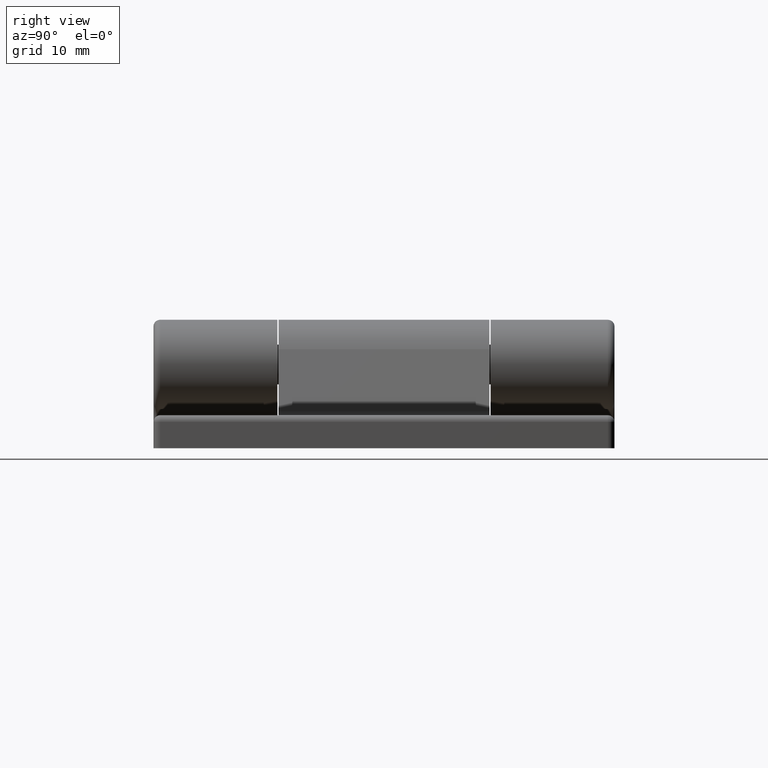
[diagram: clean part render]
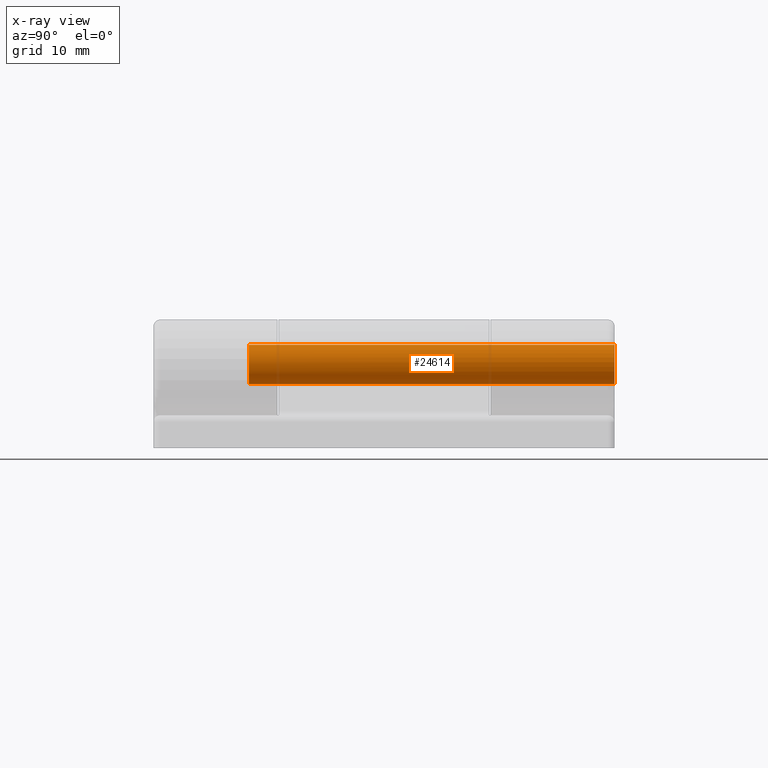
[diagram: x-ray — body ghosted, one internal face saturated and labeled with its STEP entity id]
A machine part, right view, then the same camera in x-ray: the body is ghosted and one INTERNAL B-rep face — a face not visible from any outside direction — is saturated and labeled: STEP entity #24614.
In plain terms, the highlighted cylindrical surface (bore or boss wall) has radius 3 mm, axis along (-0, -1, -0).
Its self-contained STEP definition (entity closure, byte-faithful):
#125 = CIRCLE ( 'NONE', #10555, 2.999999999999999556 ) ;
#129 = DIRECTION ( 'NONE',  ( 0.000000000000000000, -1.000000000000000000, 0.000000000000000000 ) ) ;
#154 = CIRCLE ( 'NONE', #24136, 2.999999999999999556 ) ;
#174 = DIRECTION ( 'NONE',  ( 0.000000000000000000, 0.000000000000000000, -1.000000000000000000 ) ) ;
#201 = ORIENTED_EDGE ( 'NONE', *, *, #29370, .F. ) ;
#219 = DIRECTION ( 'NONE',  ( 0.000000000000000000, 0.000000000000000000, -1.000000000000000000 ) ) ;
#243 = DIRECTION ( 'NONE',  ( 0.000000000000000000, -1.000000000000000000, 0.000000000000000000 ) ) ;
#270 = ORIENTED_EDGE ( 'NONE', *, *, #28159, .F. ) ;
#280 = VERTEX_POINT ( 'NONE', #16491 ) ;
#308 = DIRECTION ( 'NONE',  ( 0.000000000000000000, 0.000000000000000000, -1.000000000000000000 ) ) ;
#317 = VERTEX_POINT ( 'NONE', #14008 ) ;
#387 = CIRCLE ( 'NONE', #17621, 2.999999999999999556 ) ;
#399 = DIRECTION ( 'NONE',  ( 0.000000000000000000, -1.000000000000000000, 0.000000000000000000 ) ) ;
#476 = EDGE_CURVE ( 'NONE', #10172, #18580, #12371, .T. ) ;
#494 = DIRECTION ( 'NONE',  ( 0.000000000000000000, 0.000000000000000000, -1.000000000000000000 ) ) ;
#617 = AXIS2_PLACEMENT_3D ( 'NONE', #4901, #7338, #14023 ) ;
#622 = VERTEX_POINT ( 'NONE', #6955 ) ;
#703 = CARTESIAN_POINT ( 'NONE',  ( 0.000000000000000000, -20.50000000000000355, 0.000000000000000000 ) ) ;
#712 = CARTESIAN_POINT ( 'NONE',  ( 0.000000000000000000, -20.50000000000000355, 0.000000000000000000 ) ) ;
#788 = EDGE_CURVE ( 'NONE', #25530, #11251, #21283, .T. ) ;
#805 = ORIENTED_EDGE ( 'NONE', *, *, #878, .F. ) ;
#822 = VERTEX_POINT ( 'NONE', #13480 ) ;
#878 = EDGE_CURVE ( 'NONE', #822, #24810, #154, .T. ) ;
#909 = DIRECTION ( 'NONE',  ( 0.000000000000000000, -1.000000000000000000, 0.000000000000000000 ) ) ;
#917 = DIRECTION ( 'NONE',  ( 0.000000000000000000, 0.000000000000000000, -1.000000000000000000 ) ) ;
#948 = AXIS2_PLACEMENT_3D ( 'NONE', #27174, #4292, #6437 ) ;
#1004 = CIRCLE ( 'NONE', #24688, 2.999999999999999556 ) ;
#1006 = CARTESIAN_POINT ( 'NONE',  ( 0.000000000000000000, -20.50000000000000355, 0.000000000000000000 ) ) ;
#1043 = CARTESIAN_POINT ( 'NONE',  ( 0.000000000000000000, -20.50000000000000355, 0.000000000000000000 ) ) ;
#1074 = AXIS2_PLACEMENT_3D ( 'NONE', #17402, #26686, #6347 ) ;
#1085 = VERTEX_POINT ( 'NONE', #7788 ) ;
#1104 = CARTESIAN_POINT ( 'NONE',  ( 0.000000000000000000, -20.50000000000000355, 0.000000000000000000 ) ) ;
#1198 = DIRECTION ( 'NONE',  ( 0.000000000000000000, -1.000000000000000000, 0.000000000000000000 ) ) ;
#1211 = DIRECTION ( 'NONE',  ( 0.000000000000000000, 0.000000000000000000, -1.000000000000000000 ) ) ;
#1256 = ORIENTED_EDGE ( 'NONE', *, *, #11762, .F. ) ;
#1377 = ORIENTED_EDGE ( 'NONE', *, *, #2582, .F. ) ;
#1393 = ORIENTED_EDGE ( 'NONE', *, *, #23893, .F. ) ;
#1421 = CARTESIAN_POINT ( 'NONE',  ( 0.000000000000000000, -20.50000000000000355, 0.000000000000000000 ) ) ;
#1425 = DIRECTION ( 'NONE',  ( 0.000000000000000000, -1.000000000000000000, 0.000000000000000000 ) ) ;
#1457 = EDGE_CURVE ( 'NONE', #22306, #22374, #28733, .T. ) ;
#1497 = EDGE_CURVE ( 'NONE', #16645, #13468, #23339, .T. ) ;
#1507 = DIRECTION ( 'NONE',  ( 0.000000000000000000, -1.000000000000000000, 0.000000000000000000 ) ) ;
#1520 = DIRECTION ( 'NONE',  ( 0.000000000000000000, 0.000000000000000000, -1.000000000000000000 ) ) ;
#1553 = ORIENTED_EDGE ( 'NONE', *, *, #17647, .F. ) ;
#1556 = ORIENTED_EDGE ( 'NONE', *, *, #25214, .F. ) ;
#1562 = CARTESIAN_POINT ( 'NONE',  ( -1.567495694147814200, -20.50000000000000355, 2.557920493062296519 ) ) ;
#1571 = EDGE_CURVE ( 'NONE', #24154, #3248, #26936, .T. ) ;
#1572 = DIRECTION ( 'NONE',  ( 0.000000000000000000, -1.000000000000000000, 0.000000000000000000 ) ) ;
#1574 = DIRECTION ( 'NONE',  ( 0.000000000000000000, -1.000000000000000000, 0.000000000000000000 ) ) ;
#1620 = CARTESIAN_POINT ( 'NONE',  ( 0.000000000000000000, -20.50000000000000355, 0.000000000000000000 ) ) ;
#1707 = VERTEX_POINT ( 'NONE', #24244 ) ;
#1717 = ORIENTED_EDGE ( 'NONE', *, *, #1457, .F. ) ;
#1863 = CIRCLE ( 'NONE', #4300, 2.999999999999999556 ) ;
#1871 = CARTESIAN_POINT ( 'NONE',  ( 0.000000000000000000, -20.50000000000000355, 0.000000000000000000 ) ) ;
#1878 = AXIS2_PLACEMENT_3D ( 'NONE', #28706, #7977, #1211 ) ;
#1891 = AXIS2_PLACEMENT_3D ( 'NONE', #5761, #28813, #10365 ) ;
#1915 = DIRECTION ( 'NONE',  ( 0.000000000000000000, 0.000000000000000000, -1.000000000000000000 ) ) ;
#1927 = AXIS2_PLACEMENT_3D ( 'NONE', #29552, #6429, #15600 ) ;
#1993 = CARTESIAN_POINT ( 'NONE',  ( 0.4693033951206732057, -20.50000000000000355, -2.963065021785416420 ) ) ;
#2046 = EDGE_CURVE ( 'NONE', #24005, #13152, #11833, .T. ) ;
#2048 = DIRECTION ( 'NONE',  ( 0.000000000000000000, -1.000000000000000000, 0.000000000000000000 ) ) ;
#2069 = CIRCLE ( 'NONE', #617, 2.999999999999999556 ) ;
#2095 = AXIS2_PLACEMENT_3D ( 'NONE', #12037, #7251, #28004 ) ;
#2138 = DIRECTION ( 'NONE',  ( 0.000000000000000000, 0.000000000000000000, -1.000000000000000000 ) ) ;
#2331 = ORIENTED_EDGE ( 'NONE', *, *, #3957, .F. ) ;
#2401 = CIRCLE ( 'NONE', #3687, 2.999999999999999556 ) ;
#2436 = CARTESIAN_POINT ( 'NONE',  ( 0.000000000000000000, -20.50000000000000355, 0.000000000000000000 ) ) ;
#2473 = EDGE_CURVE ( 'NONE', #21833, #21212, #5938, .T. ) ;
#2516 = CIRCLE ( 'NONE', #26269, 2.999999999999999556 ) ;
#2555 = DIRECTION ( 'NONE',  ( 0.000000000000000000, -1.000000000000000000, 0.000000000000000000 ) ) ;
#2565 = CARTESIAN_POINT ( 'NONE',  ( 0.000000000000000000, -20.50000000000000355, -3.000000000000000000 ) ) ;
#2582 = EDGE_CURVE ( 'NONE', #12116, #11565, #23376, .T. ) ;
#2605 = DIRECTION ( 'NONE',  ( 0.000000000000000000, 0.000000000000000000, -1.000000000000000000 ) ) ;
#2620 = CIRCLE ( 'NONE', #11956, 2.999999999999999556 ) ;
#2630 = CIRCLE ( 'NONE', #22335, 2.999999999999999556 ) ;
#2801 = EDGE_CURVE ( 'NONE', #25244, #24154, #2620, .T. ) ;
#2815 = CARTESIAN_POINT ( 'NONE',  ( 0.000000000000000000, -20.50000000000000355, 0.000000000000000000 ) ) ;
#2821 = AXIS2_PLACEMENT_3D ( 'NONE', #12709, #15216, #19756 ) ;
#2845 = DIRECTION ( 'NONE',  ( 0.000000000000000000, -1.000000000000000000, 0.000000000000000000 ) ) ;
#2881 = EDGE_CURVE ( 'NONE', #15532, #11826, #13763, .T. ) ;
#2949 = AXIS2_PLACEMENT_3D ( 'NONE', #23690, #17011, #917 ) ;
#2998 = DIRECTION ( 'NONE',  ( 0.000000000000000000, 0.000000000000000000, -1.000000000000000000 ) ) ;
#3021 = AXIS2_PLACEMENT_3D ( 'NONE', #2815, #21084, #308 ) ;
#3073 = CIRCLE ( 'NONE', #24640, 2.999999999999999556 ) ;
#3101 = ORIENTED_EDGE ( 'NONE', *, *, #24093, .F. ) ;
#3116 = AXIS2_PLACEMENT_3D ( 'NONE', #15536, #15244, #1520 ) ;
#3136 = VERTEX_POINT ( 'NONE', #4638 ) ;
#3156 = CIRCLE ( 'NONE', #23566, 2.999999999999999556 ) ;
#3248 = VERTEX_POINT ( 'NONE', #3629 ) ;
#3275 = DIRECTION ( 'NONE',  ( 0.000000000000000000, -1.000000000000000000, 0.000000000000000000 ) ) ;
#3306 = ORIENTED_EDGE ( 'NONE', *, *, #5730, .F. ) ;
#3310 = ORIENTED_EDGE ( 'NONE', *, *, #14317, .F. ) ;
#3406 = CARTESIAN_POINT ( 'NONE',  ( 0.000000000000000000, -20.50000000000000355, 0.000000000000000000 ) ) ;
#3411 = ORIENTED_EDGE ( 'NONE', *, *, #13084, .F. ) ;
#3540 = ORIENTED_EDGE ( 'NONE', *, *, #6449, .F. ) ;
#3605 = EDGE_CURVE ( 'NONE', #9945, #6413, #24049, .T. ) ;
#3613 = CARTESIAN_POINT ( 'NONE',  ( 0.7003360915677179221, -20.50000000000000355, 2.917109761193029449 ) ) ;
#3629 = CARTESIAN_POINT ( 'NONE',  ( 0.7003360915676970500, -20.50000000000000355, -2.917109761193034778 ) ) ;
#3632 = CARTESIAN_POINT ( 'NONE',  ( 0.000000000000000000, -20.50000000000000355, 0.000000000000000000 ) ) ;
#3669 = VERTEX_POINT ( 'NONE', #10143 ) ;
#3687 = AXIS2_PLACEMENT_3D ( 'NONE', #8953, #18209, #25095 ) ;
#3715 = CARTESIAN_POINT ( 'NONE',  ( 2.917109761193032114, -20.50000000000000355, 0.7003360915677073750 ) ) ;
#3756 = CIRCLE ( 'NONE', #18033, 2.999999999999999556 ) ;
#3766 = DIRECTION ( 'NONE',  ( 0.000000000000000000, 0.000000000000000000, -1.000000000000000000 ) ) ;
#3801 = CIRCLE ( 'NONE', #4882, 2.999999999999999556 ) ;
#3867 = AXIS2_PLACEMENT_3D ( 'NONE', #24076, #24171, #10531 ) ;
#3894 = CARTESIAN_POINT ( 'NONE',  ( 0.000000000000000000, -20.50000000000000355, 0.000000000000000000 ) ) ;
#3957 = EDGE_CURVE ( 'NONE', #13152, #21833, #9436, .T. ) ;
#4044 = CIRCLE ( 'NONE', #5925, 2.999999999999999556 ) ;
#4046 = ORIENTED_EDGE ( 'NONE', *, *, #9556, .F. ) ;
#4059 = ORIENTED_EDGE ( 'NONE', *, *, #17085, .F. ) ;
#4108 = EDGE_CURVE ( 'NONE', #6438, #4365, #19009, .T. ) ;
#4183 = ORIENTED_EDGE ( 'NONE', *, *, #476, .F. ) ;
#4241 = EDGE_CURVE ( 'NONE', #14443, #22667, #29381, .T. ) ;
#4265 = VERTEX_POINT ( 'NONE', #14001 ) ;
#4292 = DIRECTION ( 'NONE',  ( 0.000000000000000000, -1.000000000000000000, 0.000000000000000000 ) ) ;
#4300 = AXIS2_PLACEMENT_3D ( 'NONE', #10354, #1507, #23891 ) ;
#4306 = DIRECTION ( 'NONE',  ( 0.000000000000000000, 0.000000000000000000, -1.000000000000000000 ) ) ;
#4365 = VERTEX_POINT ( 'NONE', #24691 ) ;
#4372 = EDGE_CURVE ( 'NONE', #22667, #25914, #22244, .T. ) ;
#4379 = VERTEX_POINT ( 'NONE', #6465 ) ;
#4387 = CARTESIAN_POINT ( 'NONE',  ( 0.000000000000000000, -20.50000000000000355, 0.000000000000000000 ) ) ;
#4430 = CARTESIAN_POINT ( 'NONE',  ( -2.121320343559661037, -20.50000000000000355, -2.121320343559624177 ) ) ;
#4564 = CIRCLE ( 'NONE', #11392, 2.999999999999999556 ) ;
#4597 = DIRECTION ( 'NONE',  ( 0.000000000000000000, -1.000000000000000000, 0.000000000000000000 ) ) ;
#4638 = CARTESIAN_POINT ( 'NONE',  ( 1.948344144990554971, -20.50000000000000355, 2.281217896800090017 ) ) ;
#4682 = CARTESIAN_POINT ( 'NONE',  ( -1.361971499218605386, -20.50000000000000355, 2.673019572565121571 ) ) ;
#4823 = AXIS2_PLACEMENT_3D ( 'NONE', #15029, #26000, #16909 ) ;
#4882 = AXIS2_PLACEMENT_3D ( 'NONE', #24967, #29379, #22765 ) ;
#4893 = VERTEX_POINT ( 'NONE', #6595 ) ;
#4901 = CARTESIAN_POINT ( 'NONE',  ( 0.000000000000000000, -20.50000000000000355, 0.000000000000000000 ) ) ;
#4915 = CARTESIAN_POINT ( 'NONE',  ( 0.000000000000000000, -20.50000000000000355, 0.000000000000000000 ) ) ;
#4974 = ORIENTED_EDGE ( 'NONE', *, *, #13187, .F. ) ;
#4977 = DIRECTION ( 'NONE',  ( 0.000000000000000000, 0.000000000000000000, -1.000000000000000000 ) ) ;
#5092 = CIRCLE ( 'NONE', #10523, 2.999999999999999556 ) ;
#5178 = CARTESIAN_POINT ( 'NONE',  ( 0.000000000000000000, -20.50000000000000355, 0.000000000000000000 ) ) ;
#5222 = DIRECTION ( 'NONE',  ( 0.000000000000000000, -1.000000000000000000, 0.000000000000000000 ) ) ;
#5287 = CIRCLE ( 'NONE', #12483, 2.999999999999999556 ) ;
#5311 = VERTEX_POINT ( 'NONE', #26138 ) ;
#5332 = EDGE_CURVE ( 'NONE', #6981, #16645, #16429, .T. ) ;
#5351 = CARTESIAN_POINT ( 'NONE',  ( 1.763355756877422964, -20.50000000000000355, 2.427050983124840133 ) ) ;
#5498 = ORIENTED_EDGE ( 'NONE', *, *, #15073, .F. ) ;
#5524 = EDGE_CURVE ( 'NONE', #23504, #12423, #2401, .T. ) ;
#5624 = CARTESIAN_POINT ( 'NONE',  ( 0.000000000000000000, -20.50000000000000355, 0.000000000000000000 ) ) ;
#5628 = ORIENTED_EDGE ( 'NONE', *, *, #13125, .F. ) ;
#5648 = ORIENTED_EDGE ( 'NONE', *, *, #5332, .F. ) ;
#5698 = EDGE_CURVE ( 'NONE', #14682, #29574, #28186, .T. ) ;
#5714 = DIRECTION ( 'NONE',  ( 0.000000000000000000, -1.000000000000000000, 0.000000000000000000 ) ) ;
#5730 = EDGE_CURVE ( 'NONE', #6297, #9230, #4564, .T. ) ;
#5733 = VERTEX_POINT ( 'NONE', #10250 ) ;
#5761 = CARTESIAN_POINT ( 'NONE',  ( 0.000000000000000000, -20.50000000000000355, 0.000000000000000000 ) ) ;
#5779 = AXIS2_PLACEMENT_3D ( 'NONE', #16879, #21455, #10620 ) ;
#5789 = EDGE_CURVE ( 'NONE', #23654, #9945, #10323, .T. ) ;
#5849 = ORIENTED_EDGE ( 'NONE', *, *, #24636, .F. ) ;
#5868 = DIRECTION ( 'NONE',  ( 0.000000000000000000, 0.000000000000000000, -1.000000000000000000 ) ) ;
#5917 = CIRCLE ( 'NONE', #23465, 2.999999999999999556 ) ;
#5925 = AXIS2_PLACEMENT_3D ( 'NONE', #1871, #17867, #20137 ) ;
#5938 = CIRCLE ( 'NONE', #7365, 2.999999999999999556 ) ;
#6008 = DIRECTION ( 'NONE',  ( 0.000000000000000000, 0.000000000000000000, -1.000000000000000000 ) ) ;
#6071 = ORIENTED_EDGE ( 'NONE', *, *, #24259, .F. ) ;
#6168 = CIRCLE ( 'NONE', #4823, 2.999999999999999556 ) ;
#6230 = DIRECTION ( 'NONE',  ( 0.000000000000000000, -1.000000000000000000, 0.000000000000000000 ) ) ;
#6265 = DIRECTION ( 'NONE',  ( 0.000000000000000000, -1.000000000000000000, 0.000000000000000000 ) ) ;
#6273 = VERTEX_POINT ( 'NONE', #3613 ) ;
#6277 = CARTESIAN_POINT ( 'NONE',  ( -2.121320343559616628, -20.50000000000000355, 2.121320343559668586 ) ) ;
#6297 = VERTEX_POINT ( 'NONE', #21802 ) ;
#6334 = VERTEX_POINT ( 'NONE', #6355 ) ;
#6347 = DIRECTION ( 'NONE',  ( 0.000000000000000000, 0.000000000000000000, -1.000000000000000000 ) ) ;
#6355 = CARTESIAN_POINT ( 'NONE',  ( -2.427050983124820593, -20.50000000000000355, 1.763355756877448943 ) ) ;
#6413 = VERTEX_POINT ( 'NONE', #19775 ) ;
#6429 = DIRECTION ( 'NONE',  ( 0.000000000000000000, -1.000000000000000000, 0.000000000000000000 ) ) ;
#6432 = ORIENTED_EDGE ( 'NONE', *, *, #2881, .F. ) ;
#6437 = DIRECTION ( 'NONE',  ( 0.000000000000000000, 0.000000000000000000, -1.000000000000000000 ) ) ;
#6438 = VERTEX_POINT ( 'NONE', #10838 ) ;
#6449 = EDGE_CURVE ( 'NONE', #6413, #10172, #3801, .T. ) ;
#6460 = DIRECTION ( 'NONE',  ( 0.000000000000000000, 0.000000000000000000, -1.000000000000000000 ) ) ;
#6465 = CARTESIAN_POINT ( 'NONE',  ( 1.763355756877405867, -20.50000000000000355, -2.427050983124852568 ) ) ;
#6499 = VERTEX_POINT ( 'NONE', #13523 ) ;
#6528 = DIRECTION ( 'NONE',  ( 0.000000000000000000, -1.000000000000000000, 0.000000000000000000 ) ) ;
#6595 = CARTESIAN_POINT ( 'NONE',  ( 2.427050983124833916, -20.50000000000000355, -1.763355756877430958 ) ) ;
#6601 = ORIENTED_EDGE ( 'NONE', *, *, #5524, .F. ) ;
#6612 = VERTEX_POINT ( 'NONE', #19445 ) ;
#6638 = CARTESIAN_POINT ( 'NONE',  ( -0.2353772871834917402, -20.50000000000000355, 2.990752001199386889 ) ) ;
#6687 = CIRCLE ( 'NONE', #20998, 2.999999999999999556 ) ;
#6713 = ORIENTED_EDGE ( 'NONE', *, *, #4372, .F. ) ;
#6736 = AXIS2_PLACEMENT_3D ( 'NONE', #19743, #1572, #15201 ) ;
#6766 = DIRECTION ( 'NONE',  ( 0.000000000000000000, 0.000000000000000000, -1.000000000000000000 ) ) ;
#6780 = CIRCLE ( 'NONE', #14190, 2.999999999999999556 ) ;
#6955 = CARTESIAN_POINT ( 'NONE',  ( 0.000000000000000000, 35.00000000000000000, 2.999999999999999556 ) ) ;
#6980 = DIRECTION ( 'NONE',  ( 0.000000000000000000, -1.000000000000000000, 0.000000000000000000 ) ) ;
#6981 = VERTEX_POINT ( 'NONE', #16898 ) ;
#6996 = AXIS2_PLACEMENT_3D ( 'NONE', #18147, #11102, #24825 ) ;
#7049 = CARTESIAN_POINT ( 'NONE',  ( 0.000000000000000000, -20.50000000000000355, 0.000000000000000000 ) ) ;
#7166 = DIRECTION ( 'NONE',  ( 0.000000000000000000, 0.000000000000000000, -1.000000000000000000 ) ) ;
#7173 = CARTESIAN_POINT ( 'NONE',  ( -2.771638597533871984, -20.50000000000000355, -1.148050297095241534 ) ) ;
#7212 = EDGE_CURVE ( 'NONE', #21476, #21323, #16798, .T. ) ;
#7232 = VERTEX_POINT ( 'NONE', #14115 ) ;
#7251 = DIRECTION ( 'NONE',  ( 0.000000000000000000, -1.000000000000000000, 0.000000000000000000 ) ) ;
#7264 = CARTESIAN_POINT ( 'NONE',  ( 0.000000000000000000, -20.50000000000000355, 0.000000000000000000 ) ) ;
#7277 = DIRECTION ( 'NONE',  ( 0.000000000000000000, 0.000000000000000000, -1.000000000000000000 ) ) ;
#7286 = DIRECTION ( 'NONE',  ( 0.000000000000000000, 0.000000000000000000, -1.000000000000000000 ) ) ;
#7300 = ORIENTED_EDGE ( 'NONE', *, *, #25252, .F. ) ;
#7338 = DIRECTION ( 'NONE',  ( 0.000000000000000000, -1.000000000000000000, 0.000000000000000000 ) ) ;
#7365 = AXIS2_PLACEMENT_3D ( 'NONE', #5624, #23577, #14626 ) ;
#7366 = AXIS2_PLACEMENT_3D ( 'NONE', #712, #23586, #14034 ) ;
#7499 = CIRCLE ( 'NONE', #3116, 2.999999999999999556 ) ;
#7518 = CARTESIAN_POINT ( 'NONE',  ( 0.000000000000000000, -20.50000000000000355, 0.000000000000000000 ) ) ;
#7553 = AXIS2_PLACEMENT_3D ( 'NONE', #10952, #24785, #1915 ) ;
#7577 = DIRECTION ( 'NONE',  ( 0.000000000000000000, -1.000000000000000000, 0.000000000000000000 ) ) ;
#7590 = AXIS2_PLACEMENT_3D ( 'NONE', #17667, #1574, #20029 ) ;
#7603 = ORIENTED_EDGE ( 'NONE', *, *, #2473, .F. ) ;
#7612 = CIRCLE ( 'NONE', #22122, 2.999999999999999556 ) ;
#7657 = DIRECTION ( 'NONE',  ( 0.000000000000000000, 0.000000000000000000, -1.000000000000000000 ) ) ;
#7689 = DIRECTION ( 'NONE',  ( 0.000000000000000000, -1.000000000000000000, 0.000000000000000000 ) ) ;
#7788 = CARTESIAN_POINT ( 'NONE',  ( 2.557920493062269429, -20.50000000000000355, -1.567495694147858609 ) ) ;
#7799 = EDGE_CURVE ( 'NONE', #12423, #28417, #16743, .T. ) ;
#7882 = CIRCLE ( 'NONE', #25696, 2.999999999999999556 ) ;
#7944 = ORIENTED_EDGE ( 'NONE', *, *, #18792, .F. ) ;
#7977 = DIRECTION ( 'NONE',  ( 0.000000000000000000, -1.000000000000000000, 0.000000000000000000 ) ) ;
#8118 = DIRECTION ( 'NONE',  ( 0.000000000000000000, 0.000000000000000000, -1.000000000000000000 ) ) ;
#8219 = CARTESIAN_POINT ( 'NONE',  ( 0.000000000000000000, -20.50000000000000355, 0.000000000000000000 ) ) ;
#8253 = DIRECTION ( 'NONE',  ( 0.000000000000000000, -1.000000000000000000, 0.000000000000000000 ) ) ;
#8305 = DIRECTION ( 'NONE',  ( 0.000000000000000000, -1.000000000000000000, 0.000000000000000000 ) ) ;
#8343 = AXIS2_PLACEMENT_3D ( 'NONE', #26327, #23825, #21918 ) ;
#8352 = AXIS2_PLACEMENT_3D ( 'NONE', #1043, #7689, #26131 ) ;
#8403 = ORIENTED_EDGE ( 'NONE', *, *, #3605, .F. ) ;
#8411 = FACE_OUTER_BOUND ( 'NONE', #16432, .T. ) ;
#8529 = ORIENTED_EDGE ( 'NONE', *, *, #13645, .F. ) ;
#8564 = VERTEX_POINT ( 'NONE', #18922 ) ;
#8703 = VERTEX_POINT ( 'NONE', #19219 ) ;
#8716 = AXIS2_PLACEMENT_3D ( 'NONE', #25014, #27421, #13767 ) ;
#8771 = CIRCLE ( 'NONE', #23994, 2.999999999999999556 ) ;
#8937 = CIRCLE ( 'NONE', #12601, 2.999999999999999556 ) ;
#8953 = CARTESIAN_POINT ( 'NONE',  ( 0.000000000000000000, -20.50000000000000355, 0.000000000000000000 ) ) ;
#9000 = CARTESIAN_POINT ( 'NONE',  ( -1.148050297095231986, -20.50000000000000355, 2.771638597533875981 ) ) ;
#9055 = EDGE_CURVE ( 'NONE', #1085, #20562, #5917, .T. ) ;
#9066 = ORIENTED_EDGE ( 'NONE', *, *, #4108, .F. ) ;
#9074 = CIRCLE ( 'NONE', #14790, 2.999999999999999556 ) ;
#9129 = CARTESIAN_POINT ( 'NONE',  ( 0.9270509831248445742, -20.50000000000000355, 2.853169548885460483 ) ) ;
#9219 = DIRECTION ( 'NONE',  ( 0.000000000000000000, -1.000000000000000000, 0.000000000000000000 ) ) ;
#9230 = VERTEX_POINT ( 'NONE', #7173 ) ;
#9237 = CIRCLE ( 'NONE', #10218, 2.999999999999999556 ) ;
#9340 = DIRECTION ( 'NONE',  ( 0.000000000000000000, 0.000000000000000000, -1.000000000000000000 ) ) ;
#9368 = DIRECTION ( 'NONE',  ( 0.000000000000000000, 0.000000000000000000, -1.000000000000000000 ) ) ;
#9371 = EDGE_CURVE ( 'NONE', #24348, #29078, #2630, .T. ) ;
#9378 = CARTESIAN_POINT ( 'NONE',  ( 0.000000000000000000, -20.50000000000000355, 0.000000000000000000 ) ) ;
#9420 = EDGE_CURVE ( 'NONE', #11565, #20973, #20503, .T. ) ;
#9436 = CIRCLE ( 'NONE', #26840, 2.999999999999999556 ) ;
#9494 = EDGE_CURVE ( 'NONE', #4365, #317, #17297, .T. ) ;
#9542 = EDGE_CURVE ( 'NONE', #4893, #1085, #27301, .T. ) ;
#9548 = DIRECTION ( 'NONE',  ( 0.000000000000000000, -1.000000000000000000, 0.000000000000000000 ) ) ;
#9556 = EDGE_CURVE ( 'NONE', #317, #6499, #4044, .T. ) ;
#9597 = AXIS2_PLACEMENT_3D ( 'NONE', #16298, #16106, #9340 ) ;
#9655 = DIRECTION ( 'NONE',  ( 0.000000000000000000, -1.000000000000000000, 0.000000000000000000 ) ) ;
#9689 = CARTESIAN_POINT ( 'NONE',  ( -2.963065021785407982, -20.50000000000000355, 0.4693033951207262744 ) ) ;
#9796 = CARTESIAN_POINT ( 'NONE',  ( -0.4693033951206513343, -20.50000000000000355, 2.963065021785420416 ) ) ;
#9886 = CARTESIAN_POINT ( 'NONE',  ( -0.7003360915676768439, -20.50000000000000355, 2.917109761193039219 ) ) ;
#9945 = VERTEX_POINT ( 'NONE', #23912 ) ;
#9964 = AXIS2_PLACEMENT_3D ( 'NONE', #703, #5222, #21170 ) ;
#9995 = ORIENTED_EDGE ( 'NONE', *, *, #17046, .F. ) ;
#10035 = EDGE_CURVE ( 'NONE', #26013, #14443, #5092, .T. ) ;
#10111 = DIRECTION ( 'NONE',  ( 0.000000000000000000, 0.000000000000000000, -1.000000000000000000 ) ) ;
#10143 = CARTESIAN_POINT ( 'NONE',  ( -2.990752001199381560, -20.50000000000000355, 0.2353772871835674851 ) ) ;
#10172 = VERTEX_POINT ( 'NONE', #6638 ) ;
#10218 = AXIS2_PLACEMENT_3D ( 'NONE', #7049, #22979, #25273 ) ;
#10221 = ORIENTED_EDGE ( 'NONE', *, *, #11808, .F. ) ;
#10250 = CARTESIAN_POINT ( 'NONE',  ( -0.9270509831248647803, -20.50000000000000355, -2.853169548885453821 ) ) ;
#10269 = ORIENTED_EDGE ( 'NONE', *, *, #1571, .F. ) ;
#10298 = EDGE_CURVE ( 'NONE', #4265, #6438, #18257, .T. ) ;
#10323 = CIRCLE ( 'NONE', #27866, 2.999999999999999556 ) ;
#10329 = CARTESIAN_POINT ( 'NONE',  ( 0.000000000000000000, -20.50000000000000355, 0.000000000000000000 ) ) ;
#10354 = CARTESIAN_POINT ( 'NONE',  ( 0.000000000000000000, -20.50000000000000355, 0.000000000000000000 ) ) ;
#10365 = DIRECTION ( 'NONE',  ( 0.000000000000000000, 0.000000000000000000, -1.000000000000000000 ) ) ;
#10523 = AXIS2_PLACEMENT_3D ( 'NONE', #24008, #26419, #5868 ) ;
#10531 = DIRECTION ( 'NONE',  ( 0.000000000000000000, 0.000000000000000000, -1.000000000000000000 ) ) ;
#10555 = AXIS2_PLACEMENT_3D ( 'NONE', #1421, #10764, #26603 ) ;
#10586 = CARTESIAN_POINT ( 'NONE',  ( 0.4693033951206938004, -20.50000000000000355, 2.963065021785413755 ) ) ;
#10614 = CARTESIAN_POINT ( 'NONE',  ( 2.917109761193027229, -20.50000000000000355, -0.7003360915677283582 ) ) ;
#10620 = DIRECTION ( 'NONE',  ( 0.000000000000000000, 0.000000000000000000, -1.000000000000000000 ) ) ;
#10718 = CARTESIAN_POINT ( 'NONE',  ( 2.673019572565096702, -20.50000000000000355, -1.361971499218653125 ) ) ;
#10740 = ORIENTED_EDGE ( 'NONE', *, *, #4241, .F. ) ;
#10764 = DIRECTION ( 'NONE',  ( 0.000000000000000000, -1.000000000000000000, 0.000000000000000000 ) ) ;
#10792 = CARTESIAN_POINT ( 'NONE',  ( 0.000000000000000000, -20.50000000000000355, 0.000000000000000000 ) ) ;
#10811 = CARTESIAN_POINT ( 'NONE',  ( 2.990752001199384669, -20.50000000000000355, 0.2353772871835250469 ) ) ;
#10838 = CARTESIAN_POINT ( 'NONE',  ( 2.673019572565106916, -20.50000000000000355, 1.361971499218633808 ) ) ;
#10935 = CARTESIAN_POINT ( 'NONE',  ( -1.567495694147867935, -20.50000000000000355, -2.557920493062264100 ) ) ;
#10952 = CARTESIAN_POINT ( 'NONE',  ( 0.000000000000000000, -20.50000000000000355, 0.000000000000000000 ) ) ;
#11004 = CARTESIAN_POINT ( 'NONE',  ( 0.000000000000000000, -20.50000000000000355, 0.000000000000000000 ) ) ;
#11022 = CIRCLE ( 'NONE', #16662, 2.999999999999999556 ) ;
#11102 = DIRECTION ( 'NONE',  ( 0.000000000000000000, -1.000000000000000000, 0.000000000000000000 ) ) ;
#11111 = DIRECTION ( 'NONE',  ( 0.000000000000000000, 0.000000000000000000, -1.000000000000000000 ) ) ;
#11237 = CARTESIAN_POINT ( 'NONE',  ( 0.000000000000000000, -20.50000000000000355, 0.000000000000000000 ) ) ;
#11251 = VERTEX_POINT ( 'NONE', #20093 ) ;
#11392 = AXIS2_PLACEMENT_3D ( 'NONE', #25796, #28103, #7657 ) ;
#11396 = CARTESIAN_POINT ( 'NONE',  ( 0.000000000000000000, -20.50000000000000355, 0.000000000000000000 ) ) ;
#11439 = DIRECTION ( 'NONE',  ( 0.000000000000000000, -1.000000000000000000, 0.000000000000000000 ) ) ;
#11491 = DIRECTION ( 'NONE',  ( 0.000000000000000000, 0.000000000000000000, -1.000000000000000000 ) ) ;
#11565 = VERTEX_POINT ( 'NONE', #17112 ) ;
#11577 = DIRECTION ( 'NONE',  ( 0.000000000000000000, 0.000000000000000000, -1.000000000000000000 ) ) ;
#11612 = DIRECTION ( 'NONE',  ( 0.000000000000000000, 0.000000000000000000, -1.000000000000000000 ) ) ;
#11691 = ORIENTED_EDGE ( 'NONE', *, *, #14188, .F. ) ;
#11698 = CARTESIAN_POINT ( 'NONE',  ( 0.000000000000000000, -20.50000000000000355, 0.000000000000000000 ) ) ;
#11755 = DIRECTION ( 'NONE',  ( 0.000000000000000000, 0.000000000000000000, -1.000000000000000000 ) ) ;
#11762 = EDGE_CURVE ( 'NONE', #21323, #3669, #6780, .T. ) ;
#11803 = EDGE_CURVE ( 'NONE', #4379, #25530, #26771, .T. ) ;
#11808 = EDGE_CURVE ( 'NONE', #9230, #14310, #18882, .T. ) ;
#11826 = VERTEX_POINT ( 'NONE', #29099 ) ;
#11833 = CIRCLE ( 'NONE', #15960, 2.999999999999999556 ) ;
#11849 = VERTEX_POINT ( 'NONE', #2565 ) ;
#11930 = VERTEX_POINT ( 'NONE', #14006 ) ;
#11947 = CIRCLE ( 'NONE', #28737, 2.999999999999999556 ) ;
#11956 = AXIS2_PLACEMENT_3D ( 'NONE', #11004, #24742, #11111 ) ;
#12037 = CARTESIAN_POINT ( 'NONE',  ( 0.000000000000000000, -20.50000000000000355, 0.000000000000000000 ) ) ;
#12039 = ORIENTED_EDGE ( 'NONE', *, *, #18459, .F. ) ;
#12116 = VERTEX_POINT ( 'NONE', #10614 ) ;
#12159 = DIRECTION ( 'NONE',  ( 0.000000000000000000, -1.000000000000000000, 0.000000000000000000 ) ) ;
#12189 = VERTEX_POINT ( 'NONE', #22624 ) ;
#12279 = ORIENTED_EDGE ( 'NONE', *, *, #9494, .F. ) ;
#12314 = DIRECTION ( 'NONE',  ( 0.000000000000000000, 0.000000000000000000, 1.000000000000000000 ) ) ;
#12371 = CIRCLE ( 'NONE', #15382, 2.999999999999999556 ) ;
#12396 = EDGE_CURVE ( 'NONE', #17212, #6981, #15335, .T. ) ;
#12407 = DIRECTION ( 'NONE',  ( 0.000000000000000000, 1.000000000000000000, 0.000000000000000000 ) ) ;
#12423 = VERTEX_POINT ( 'NONE', #3715 ) ;
#12439 = EDGE_CURVE ( 'NONE', #29574, #17212, #11022, .T. ) ;
#12483 = AXIS2_PLACEMENT_3D ( 'NONE', #16539, #12159, #219 ) ;
#12601 = AXIS2_PLACEMENT_3D ( 'NONE', #20971, #9548, #21069 ) ;
#12644 = CARTESIAN_POINT ( 'NONE',  ( 0.000000000000000000, -20.50000000000000355, 0.000000000000000000 ) ) ;
#12661 = CARTESIAN_POINT ( 'NONE',  ( 1.948344144990538096, -20.50000000000000355, -2.281217896800103784 ) ) ;
#12688 = AXIS2_PLACEMENT_3D ( 'NONE', #3894, #8253, #24468 ) ;
#12709 = CARTESIAN_POINT ( 'NONE',  ( 0.000000000000000000, -20.50000000000000355, 0.000000000000000000 ) ) ;
#12739 = DIRECTION ( 'NONE',  ( 0.000000000000000000, 0.000000000000000000, -1.000000000000000000 ) ) ;
#12758 = ORIENTED_EDGE ( 'NONE', *, *, #10035, .F. ) ;
#12878 = AXIS2_PLACEMENT_3D ( 'NONE', #13719, #22964, #174 ) ;
#12955 = DIRECTION ( 'NONE',  ( 0.000000000000000000, 0.000000000000000000, -1.000000000000000000 ) ) ;
#13012 = AXIS2_PLACEMENT_3D ( 'NONE', #13219, #19854, #15512 ) ;
#13084 = EDGE_CURVE ( 'NONE', #8703, #3136, #17767, .T. ) ;
#13125 = EDGE_CURVE ( 'NONE', #6273, #23654, #5287, .T. ) ;
#13152 = VERTEX_POINT ( 'NONE', #16230 ) ;
#13187 = EDGE_CURVE ( 'NONE', #29360, #26042, #23021, .T. ) ;
#13219 = CARTESIAN_POINT ( 'NONE',  ( 0.000000000000000000, -20.50000000000000355, 0.000000000000000000 ) ) ;
#13468 = VERTEX_POINT ( 'NONE', #24797 ) ;
#13480 = CARTESIAN_POINT ( 'NONE',  ( 0.9270509831248234800, -20.50000000000000355, -2.853169548885467144 ) ) ;
#13514 = CARTESIAN_POINT ( 'NONE',  ( 0.000000000000000000, -20.50000000000000355, 0.000000000000000000 ) ) ;
#13523 = CARTESIAN_POINT ( 'NONE',  ( 2.281217896800096678, -20.50000000000000355, 1.948344144990546312 ) ) ;
#13558 = EDGE_CURVE ( 'NONE', #29078, #6297, #387, .T. ) ;
#13607 = EDGE_CURVE ( 'NONE', #18372, #4893, #13681, .T. ) ;
#13645 = EDGE_CURVE ( 'NONE', #20562, #17060, #14417, .T. ) ;
#13681 = CIRCLE ( 'NONE', #16100, 2.999999999999999556 ) ;
#13719 = CARTESIAN_POINT ( 'NONE',  ( 0.000000000000000000, -20.50000000000000355, 0.000000000000000000 ) ) ;
#13763 = CIRCLE ( 'NONE', #18984, 2.999999999999999556 ) ;
#13767 = DIRECTION ( 'NONE',  ( 0.000000000000000000, 0.000000000000000000, -1.000000000000000000 ) ) ;
#13846 = ORIENTED_EDGE ( 'NONE', *, *, #14920, .F. ) ;
#13969 = CARTESIAN_POINT ( 'NONE',  ( 0.000000000000000000, -20.50000000000000355, 0.000000000000000000 ) ) ;
#14001 = CARTESIAN_POINT ( 'NONE',  ( 2.771638597533863546, -20.50000000000000355, 1.148050297095262184 ) ) ;
#14006 = CARTESIAN_POINT ( 'NONE',  ( -2.771638597533847115, -20.50000000000000355, 1.148050297095301930 ) ) ;
#14008 = CARTESIAN_POINT ( 'NONE',  ( 2.427050983124845907, -20.50000000000000355, 1.763355756877414082 ) ) ;
#14023 = DIRECTION ( 'NONE',  ( 0.000000000000000000, 0.000000000000000000, -1.000000000000000000 ) ) ;
#14034 = DIRECTION ( 'NONE',  ( 0.000000000000000000, 0.000000000000000000, -1.000000000000000000 ) ) ;
#14052 = DIRECTION ( 'NONE',  ( 0.000000000000000000, -1.000000000000000000, 0.000000000000000000 ) ) ;
#14055 = AXIS2_PLACEMENT_3D ( 'NONE', #10329, #19657, #17490 ) ;
#14073 = CARTESIAN_POINT ( 'NONE',  ( 0.000000000000000000, -20.50000000000000355, 0.000000000000000000 ) ) ;
#14115 = CARTESIAN_POINT ( 'NONE',  ( -2.427050983124859229, -20.50000000000000355, -1.763355756877396097 ) ) ;
#14148 = EDGE_CURVE ( 'NONE', #622, #622, #1004, .T. ) ;
#14169 = CIRCLE ( 'NONE', #8352, 2.999999999999999556 ) ;
#14188 = EDGE_CURVE ( 'NONE', #23177, #23504, #21386, .T. ) ;
#14190 = AXIS2_PLACEMENT_3D ( 'NONE', #4387, #6528, #24575 ) ;
#14205 = DIRECTION ( 'NONE',  ( 0.000000000000000000, 0.000000000000000000, -1.000000000000000000 ) ) ;
#14247 = DIRECTION ( 'NONE',  ( -0.000000000000000000, -1.000000000000000000, -0.000000000000000000 ) ) ;
#14310 = VERTEX_POINT ( 'NONE', #17343 ) ;
#14317 = EDGE_CURVE ( 'NONE', #5311, #29360, #3156, .T. ) ;
#14367 = ORIENTED_EDGE ( 'NONE', *, *, #9420, .F. ) ;
#14417 = CIRCLE ( 'NONE', #19125, 2.999999999999999556 ) ;
#14443 = VERTEX_POINT ( 'NONE', #9000 ) ;
#14462 = AXIS2_PLACEMENT_3D ( 'NONE', #4915, #399, #18769 ) ;
#14594 = VERTEX_POINT ( 'NONE', #27451 ) ;
#14626 = DIRECTION ( 'NONE',  ( 0.000000000000000000, 0.000000000000000000, -1.000000000000000000 ) ) ;
#14682 = VERTEX_POINT ( 'NONE', #24704 ) ;
#14687 = CARTESIAN_POINT ( 'NONE',  ( 0.000000000000000000, -20.50000000000000355, 0.000000000000000000 ) ) ;
#14714 = DIRECTION ( 'NONE',  ( 0.000000000000000000, 0.000000000000000000, -1.000000000000000000 ) ) ;
#14790 = AXIS2_PLACEMENT_3D ( 'NONE', #8219, #26253, #6008 ) ;
#14791 = ORIENTED_EDGE ( 'NONE', *, *, #28330, .F. ) ;
#14803 = AXIS2_PLACEMENT_3D ( 'NONE', #21171, #9655, #494 ) ;
#14920 = EDGE_CURVE ( 'NONE', #22374, #6612, #9237, .T. ) ;
#15029 = CARTESIAN_POINT ( 'NONE',  ( 0.000000000000000000, -20.50000000000000355, 0.000000000000000000 ) ) ;
#15061 = DIRECTION ( 'NONE',  ( 0.000000000000000000, -1.000000000000000000, 0.000000000000000000 ) ) ;
#15070 = ORIENTED_EDGE ( 'NONE', *, *, #7212, .F. ) ;
#15073 = EDGE_CURVE ( 'NONE', #24810, #15532, #16731, .T. ) ;
#15090 = CARTESIAN_POINT ( 'NONE',  ( 2.990752001199383781, -20.50000000000000355, -0.2353772871835460023 ) ) ;
#15179 = DIRECTION ( 'NONE',  ( 0.000000000000000000, -1.000000000000000000, 0.000000000000000000 ) ) ;
#15201 = DIRECTION ( 'NONE',  ( 0.000000000000000000, 0.000000000000000000, -1.000000000000000000 ) ) ;
#15216 = DIRECTION ( 'NONE',  ( 0.000000000000000000, -1.000000000000000000, 0.000000000000000000 ) ) ;
#15244 = DIRECTION ( 'NONE',  ( 0.000000000000000000, -1.000000000000000000, 0.000000000000000000 ) ) ;
#15303 = ORIENTED_EDGE ( 'NONE', *, *, #25242, .F. ) ;
#15335 = CIRCLE ( 'NONE', #1891, 2.999999999999999556 ) ;
#15382 = AXIS2_PLACEMENT_3D ( 'NONE', #21355, #3275, #21261 ) ;
#15512 = DIRECTION ( 'NONE',  ( 0.000000000000000000, 0.000000000000000000, -1.000000000000000000 ) ) ;
#15532 = VERTEX_POINT ( 'NONE', #27300 ) ;
#15536 = CARTESIAN_POINT ( 'NONE',  ( 0.000000000000000000, -20.50000000000000355, 0.000000000000000000 ) ) ;
#15600 = DIRECTION ( 'NONE',  ( 0.000000000000000000, 0.000000000000000000, -1.000000000000000000 ) ) ;
#15735 = VERTEX_POINT ( 'NONE', #28095 ) ;
#15786 = AXIS2_PLACEMENT_3D ( 'NONE', #28242, #25518, #21328 ) ;
#15960 = AXIS2_PLACEMENT_3D ( 'NONE', #27252, #24944, #20536 ) ;
#16066 = ORIENTED_EDGE ( 'NONE', *, *, #25282, .F. ) ;
#16100 = AXIS2_PLACEMENT_3D ( 'NONE', #20793, #16431, #7166 ) ;
#16106 = DIRECTION ( 'NONE',  ( 0.000000000000000000, -1.000000000000000000, 0.000000000000000000 ) ) ;
#16230 = CARTESIAN_POINT ( 'NONE',  ( -1.948344144990522109, -20.50000000000000355, 2.281217896800117551 ) ) ;
#16253 = CARTESIAN_POINT ( 'NONE',  ( -2.673019572565088264, -20.50000000000000355, 1.361971499218670667 ) ) ;
#16298 = CARTESIAN_POINT ( 'NONE',  ( 0.000000000000000000, -20.50000000000000355, 0.000000000000000000 ) ) ;
#16361 = DIRECTION ( 'NONE',  ( 0.000000000000000000, 0.000000000000000000, -1.000000000000000000 ) ) ;
#16429 = CIRCLE ( 'NONE', #8343, 2.999999999999999556 ) ;
#16431 = DIRECTION ( 'NONE',  ( 0.000000000000000000, -1.000000000000000000, 0.000000000000000000 ) ) ;
#16432 = EDGE_LOOP ( 'NONE', ( #3540, #8403, #21329, #5628, #1553, #1556, #24963, #13846, #1717, #26719, #3411, #28145, #4046, #12279, #9066, #19373, #7300, #26443, #6601, #11691, #16461, #3101, #14367, #1377, #19016, #23049, #8529, #27410, #20972, #24455, #15303, #28637, #22280, #29437, #6432, #5498, #805, #21392, #10269, #16566, #18839, #23635, #4974, #3310, #6071, #26518, #24960, #28476, #5648, #23704, #18427, #23298, #16066, #5849, #12039, #10221, #3306, #17638, #27363, #4059, #29504, #25656, #1256, #15070, #27418, #14791, #7944, #270, #201, #21007, #7603, #2331, #26861, #9995, #6713, #10740, #12758, #1393, #21633, #4183 ) ) ;
#16438 = EDGE_CURVE ( 'NONE', #13468, #28716, #16669, .T. ) ;
#16461 = ORIENTED_EDGE ( 'NONE', *, *, #24155, .F. ) ;
#16491 = CARTESIAN_POINT ( 'NONE',  ( -2.557920493062258327, -20.50000000000000355, 1.567495694147876595 ) ) ;
#16538 = AXIS2_PLACEMENT_3D ( 'NONE', #20615, #6980, #11577 ) ;
#16539 = CARTESIAN_POINT ( 'NONE',  ( 0.000000000000000000, -20.50000000000000355, 0.000000000000000000 ) ) ;
#16566 = ORIENTED_EDGE ( 'NONE', *, *, #2801, .F. ) ;
#16645 = VERTEX_POINT ( 'NONE', #10935 ) ;
#16662 = AXIS2_PLACEMENT_3D ( 'NONE', #12644, #1425, #12739 ) ;
#16669 = CIRCLE ( 'NONE', #8716, 2.999999999999999556 ) ;
#16731 = CIRCLE ( 'NONE', #14803, 2.999999999999999556 ) ;
#16733 = VERTEX_POINT ( 'NONE', #9129 ) ;
#16743 = CIRCLE ( 'NONE', #1074, 2.999999999999999556 ) ;
#16744 = EDGE_CURVE ( 'NONE', #12189, #12116, #3756, .T. ) ;
#16798 = CIRCLE ( 'NONE', #18463, 2.999999999999999556 ) ;
#16879 = CARTESIAN_POINT ( 'NONE',  ( 0.000000000000000000, -20.50000000000000355, 0.000000000000000000 ) ) ;
#16898 = CARTESIAN_POINT ( 'NONE',  ( -1.763355756877440728, -20.50000000000000355, -2.427050983124826811 ) ) ;
#16909 = DIRECTION ( 'NONE',  ( 0.000000000000000000, 0.000000000000000000, -1.000000000000000000 ) ) ;
#17011 = DIRECTION ( 'NONE',  ( 0.000000000000000000, -1.000000000000000000, 0.000000000000000000 ) ) ;
#17046 = EDGE_CURVE ( 'NONE', #25914, #24005, #21760, .T. ) ;
#17060 = VERTEX_POINT ( 'NONE', #17934 ) ;
#17068 = CARTESIAN_POINT ( 'NONE',  ( 0.000000000000000000, -20.50000000000000355, 0.000000000000000000 ) ) ;
#17085 = EDGE_CURVE ( 'NONE', #20584, #24348, #14169, .T. ) ;
#17112 = CARTESIAN_POINT ( 'NONE',  ( 2.963065021785411535, -20.50000000000000355, -0.4693033951207042920 ) ) ;
#17179 = AXIS2_PLACEMENT_3D ( 'NONE', #1620, #17617, #6460 ) ;
#17203 = DIRECTION ( 'NONE',  ( 0.000000000000000000, 0.000000000000000000, -1.000000000000000000 ) ) ;
#17212 = VERTEX_POINT ( 'NONE', #21520 ) ;
#17297 = CIRCLE ( 'NONE', #2821, 2.999999999999999556 ) ;
#17340 = EDGE_CURVE ( 'NONE', #11826, #4379, #22356, .T. ) ;
#17343 = CARTESIAN_POINT ( 'NONE',  ( -2.673019572565116686, -20.50000000000000355, -1.361971499218614712 ) ) ;
#17386 = EDGE_CURVE ( 'NONE', #21212, #6334, #24506, .T. ) ;
#17398 = CARTESIAN_POINT ( 'NONE',  ( 1.567495694147849727, -20.50000000000000355, 2.557920493062275202 ) ) ;
#17402 = CARTESIAN_POINT ( 'NONE',  ( 0.000000000000000000, -20.50000000000000355, 0.000000000000000000 ) ) ;
#17490 = DIRECTION ( 'NONE',  ( 0.000000000000000000, 0.000000000000000000, -1.000000000000000000 ) ) ;
#17617 = DIRECTION ( 'NONE',  ( 0.000000000000000000, -1.000000000000000000, 0.000000000000000000 ) ) ;
#17621 = AXIS2_PLACEMENT_3D ( 'NONE', #29510, #20397, #6766 ) ;
#17638 = ORIENTED_EDGE ( 'NONE', *, *, #13558, .F. ) ;
#17639 = DIRECTION ( 'NONE',  ( 0.000000000000000000, 0.000000000000000000, -1.000000000000000000 ) ) ;
#17647 = EDGE_CURVE ( 'NONE', #16733, #6273, #8771, .T. ) ;
#17667 = CARTESIAN_POINT ( 'NONE',  ( 0.000000000000000000, -20.50000000000000355, 0.000000000000000000 ) ) ;
#17707 = DIRECTION ( 'NONE',  ( 0.000000000000000000, 0.000000000000000000, -1.000000000000000000 ) ) ;
#17767 = CIRCLE ( 'NONE', #18546, 2.999999999999999556 ) ;
#17867 = DIRECTION ( 'NONE',  ( 0.000000000000000000, -1.000000000000000000, 0.000000000000000000 ) ) ;
#17934 = CARTESIAN_POINT ( 'NONE',  ( 2.771638597533855997, -20.50000000000000355, -1.148050297095281502 ) ) ;
#17962 = ORIENTED_EDGE ( 'NONE', *, *, #14148, .F. ) ;
#17982 = AXIS2_PLACEMENT_3D ( 'NONE', #25584, #14247, #2605 ) ;
#18033 = AXIS2_PLACEMENT_3D ( 'NONE', #11237, #4597, #20266 ) ;
#18147 = CARTESIAN_POINT ( 'NONE',  ( 0.000000000000000000, -20.50000000000000355, 0.000000000000000000 ) ) ;
#18209 = DIRECTION ( 'NONE',  ( 0.000000000000000000, -1.000000000000000000, 0.000000000000000000 ) ) ;
#18257 = CIRCLE ( 'NONE', #9964, 2.999999999999999556 ) ;
#18319 = CIRCLE ( 'NONE', #15786, 2.999999999999999556 ) ;
#18327 = EDGE_CURVE ( 'NONE', #3248, #822, #26570, .T. ) ;
#18372 = VERTEX_POINT ( 'NONE', #25421 ) ;
#18427 = ORIENTED_EDGE ( 'NONE', *, *, #12439, .F. ) ;
#18459 = EDGE_CURVE ( 'NONE', #14310, #21406, #18319, .T. ) ;
#18463 = AXIS2_PLACEMENT_3D ( 'NONE', #19845, #6230, #22167 ) ;
#18546 = AXIS2_PLACEMENT_3D ( 'NONE', #7264, #7577, #11755 ) ;
#18580 = VERTEX_POINT ( 'NONE', #9796 ) ;
#18705 = CYLINDRICAL_SURFACE ( 'NONE', #17982, 2.999999999999999556 ) ;
#18769 = DIRECTION ( 'NONE',  ( 0.000000000000000000, 0.000000000000000000, -1.000000000000000000 ) ) ;
#18792 = EDGE_CURVE ( 'NONE', #29441, #11930, #1863, .T. ) ;
#18830 = CARTESIAN_POINT ( 'NONE',  ( 0.000000000000000000, -20.50000000000000355, 0.000000000000000000 ) ) ;
#18839 = ORIENTED_EDGE ( 'NONE', *, *, #22961, .F. ) ;
#18882 = CIRCLE ( 'NONE', #20255, 2.999999999999999556 ) ;
#18922 = CARTESIAN_POINT ( 'NONE',  ( 1.148050297095271954, -20.50000000000000355, 2.771638597533859993 ) ) ;
#18984 = AXIS2_PLACEMENT_3D ( 'NONE', #5178, #23427, #4977 ) ;
#19009 = CIRCLE ( 'NONE', #28380, 2.999999999999999556 ) ;
#19016 = ORIENTED_EDGE ( 'NONE', *, *, #16744, .F. ) ;
#19125 = AXIS2_PLACEMENT_3D ( 'NONE', #27411, #14052, #9368 ) ;
#19219 = CARTESIAN_POINT ( 'NONE',  ( 2.121320343559646382, -20.50000000000000355, 2.121320343559638832 ) ) ;
#19371 = EDGE_CURVE ( 'NONE', #3669, #15735, #7612, .T. ) ;
#19373 = ORIENTED_EDGE ( 'NONE', *, *, #10298, .F. ) ;
#19445 = CARTESIAN_POINT ( 'NONE',  ( 1.361971499218643133, -20.50000000000000355, 2.673019572565102031 ) ) ;
#19657 = DIRECTION ( 'NONE',  ( 0.000000000000000000, -1.000000000000000000, 0.000000000000000000 ) ) ;
#19743 = CARTESIAN_POINT ( 'NONE',  ( 0.000000000000000000, -20.50000000000000355, 0.000000000000000000 ) ) ;
#19756 = DIRECTION ( 'NONE',  ( 0.000000000000000000, 0.000000000000000000, -1.000000000000000000 ) ) ;
#19773 = CARTESIAN_POINT ( 'NONE',  ( -1.148050297095291050, -20.50000000000000355, -2.771638597533851112 ) ) ;
#19775 = CARTESIAN_POINT ( 'NONE',  ( 0.000000000000000000, -20.50000000000000355, 3.000000000000000000 ) ) ;
#19788 = DIRECTION ( 'NONE',  ( 0.000000000000000000, 0.000000000000000000, -1.000000000000000000 ) ) ;
#19845 = CARTESIAN_POINT ( 'NONE',  ( 0.000000000000000000, -20.50000000000000355, 0.000000000000000000 ) ) ;
#19854 = DIRECTION ( 'NONE',  ( 0.000000000000000000, -1.000000000000000000, 0.000000000000000000 ) ) ;
#19889 = CARTESIAN_POINT ( 'NONE',  ( 0.000000000000000000, -20.50000000000000355, 0.000000000000000000 ) ) ;
#20029 = DIRECTION ( 'NONE',  ( 0.000000000000000000, 0.000000000000000000, -1.000000000000000000 ) ) ;
#20093 = CARTESIAN_POINT ( 'NONE',  ( 2.121320343559631727, -20.50000000000000355, -2.121320343559653487 ) ) ;
#20137 = DIRECTION ( 'NONE',  ( 0.000000000000000000, 0.000000000000000000, -1.000000000000000000 ) ) ;
#20148 = DIRECTION ( 'NONE',  ( 0.000000000000000000, -1.000000000000000000, 0.000000000000000000 ) ) ;
#20255 = AXIS2_PLACEMENT_3D ( 'NONE', #13514, #20148, #24852 ) ;
#20266 = DIRECTION ( 'NONE',  ( 0.000000000000000000, 0.000000000000000000, -1.000000000000000000 ) ) ;
#20397 = DIRECTION ( 'NONE',  ( 0.000000000000000000, -1.000000000000000000, 0.000000000000000000 ) ) ;
#20418 = DIRECTION ( 'NONE',  ( 0.000000000000000000, -1.000000000000000000, 0.000000000000000000 ) ) ;
#20503 = CIRCLE ( 'NONE', #28481, 2.999999999999999556 ) ;
#20511 = CIRCLE ( 'NONE', #22748, 2.999999999999999556 ) ;
#20536 = DIRECTION ( 'NONE',  ( 0.000000000000000000, 0.000000000000000000, -1.000000000000000000 ) ) ;
#20562 = VERTEX_POINT ( 'NONE', #10718 ) ;
#20584 = VERTEX_POINT ( 'NONE', #24539 ) ;
#20615 = CARTESIAN_POINT ( 'NONE',  ( 0.000000000000000000, -20.50000000000000355, 0.000000000000000000 ) ) ;
#20793 = CARTESIAN_POINT ( 'NONE',  ( 0.000000000000000000, -20.50000000000000355, 0.000000000000000000 ) ) ;
#20794 = VERTEX_POINT ( 'NONE', #9886 ) ;
#20867 = AXIS2_PLACEMENT_3D ( 'NONE', #3406, #1198, #17203 ) ;
#20971 = CARTESIAN_POINT ( 'NONE',  ( 0.000000000000000000, -20.50000000000000355, 0.000000000000000000 ) ) ;
#20972 = ORIENTED_EDGE ( 'NONE', *, *, #9542, .F. ) ;
#20973 = VERTEX_POINT ( 'NONE', #15090 ) ;
#20998 = AXIS2_PLACEMENT_3D ( 'NONE', #21949, #29063, #3766 ) ;
#21007 = ORIENTED_EDGE ( 'NONE', *, *, #17386, .F. ) ;
#21069 = DIRECTION ( 'NONE',  ( 0.000000000000000000, 0.000000000000000000, -1.000000000000000000 ) ) ;
#21084 = DIRECTION ( 'NONE',  ( 0.000000000000000000, -1.000000000000000000, 0.000000000000000000 ) ) ;
#21170 = DIRECTION ( 'NONE',  ( 0.000000000000000000, 0.000000000000000000, -1.000000000000000000 ) ) ;
#21171 = CARTESIAN_POINT ( 'NONE',  ( 0.000000000000000000, -20.50000000000000355, 0.000000000000000000 ) ) ;
#21212 = VERTEX_POINT ( 'NONE', #29627 ) ;
#21261 = DIRECTION ( 'NONE',  ( 0.000000000000000000, 0.000000000000000000, -1.000000000000000000 ) ) ;
#21283 = CIRCLE ( 'NONE', #23562, 2.999999999999999556 ) ;
#21323 = VERTEX_POINT ( 'NONE', #9689 ) ;
#21328 = DIRECTION ( 'NONE',  ( 0.000000000000000000, 0.000000000000000000, -1.000000000000000000 ) ) ;
#21329 = ORIENTED_EDGE ( 'NONE', *, *, #5789, .F. ) ;
#21355 = CARTESIAN_POINT ( 'NONE',  ( 0.000000000000000000, -20.50000000000000355, 0.000000000000000000 ) ) ;
#21362 = CARTESIAN_POINT ( 'NONE',  ( 0.000000000000000000, -20.50000000000000355, 0.000000000000000000 ) ) ;
#21386 = CIRCLE ( 'NONE', #26634, 2.999999999999999556 ) ;
#21392 = ORIENTED_EDGE ( 'NONE', *, *, #18327, .F. ) ;
#21406 = VERTEX_POINT ( 'NONE', #28235 ) ;
#21455 = DIRECTION ( 'NONE',  ( 0.000000000000000000, -1.000000000000000000, 0.000000000000000000 ) ) ;
#21468 = CARTESIAN_POINT ( 'NONE',  ( 0.000000000000000000, 35.00000000000000000, 0.000000000000000000 ) ) ;
#21476 = VERTEX_POINT ( 'NONE', #21815 ) ;
#21520 = CARTESIAN_POINT ( 'NONE',  ( -1.948344144990570959, -20.50000000000000355, -2.281217896800075806 ) ) ;
#21571 = EDGE_CURVE ( 'NONE', #3136, #22306, #26093, .T. ) ;
#21625 = AXIS2_PLACEMENT_3D ( 'NONE', #18830, #25538, #14205 ) ;
#21633 = ORIENTED_EDGE ( 'NONE', *, *, #27938, .F. ) ;
#21734 = EDGE_CURVE ( 'NONE', #17060, #12189, #8937, .T. ) ;
#21760 = CIRCLE ( 'NONE', #16538, 2.999999999999999556 ) ;
#21790 = CARTESIAN_POINT ( 'NONE',  ( 1.148050297095252414, -20.50000000000000355, -2.771638597533867099 ) ) ;
#21802 = CARTESIAN_POINT ( 'NONE',  ( -2.853169548885469808, -20.50000000000000355, -0.9270509831248148203 ) ) ;
#21815 = CARTESIAN_POINT ( 'NONE',  ( -2.917109761193022788, -20.50000000000000355, 0.7003360915677482312 ) ) ;
#21833 = VERTEX_POINT ( 'NONE', #6277 ) ;
#21918 = DIRECTION ( 'NONE',  ( 0.000000000000000000, 0.000000000000000000, -1.000000000000000000 ) ) ;
#21949 = CARTESIAN_POINT ( 'NONE',  ( 0.000000000000000000, -20.50000000000000355, 0.000000000000000000 ) ) ;
#22098 = CARTESIAN_POINT ( 'NONE',  ( -1.763355756877387437, -20.50000000000000355, 2.427050983124865446 ) ) ;
#22122 = AXIS2_PLACEMENT_3D ( 'NONE', #11396, #2048, #2138 ) ;
#22160 = DIRECTION ( 'NONE',  ( 0.000000000000000000, -1.000000000000000000, 0.000000000000000000 ) ) ;
#22167 = DIRECTION ( 'NONE',  ( 0.000000000000000000, 0.000000000000000000, -1.000000000000000000 ) ) ;
#22195 = EDGE_CURVE ( 'NONE', #14594, #21476, #22826, .T. ) ;
#22244 = CIRCLE ( 'NONE', #7553, 2.999999999999999556 ) ;
#22280 = ORIENTED_EDGE ( 'NONE', *, *, #11803, .F. ) ;
#22306 = VERTEX_POINT ( 'NONE', #5351 ) ;
#22312 = CIRCLE ( 'NONE', #9597, 2.999999999999999556 ) ;
#22335 = AXIS2_PLACEMENT_3D ( 'NONE', #19889, #6265, #19788 ) ;
#22356 = CIRCLE ( 'NONE', #14462, 2.999999999999999556 ) ;
#22374 = VERTEX_POINT ( 'NONE', #17398 ) ;
#22617 = CIRCLE ( 'NONE', #21625, 2.999999999999999556 ) ;
#22624 = CARTESIAN_POINT ( 'NONE',  ( 2.853169548885457374, -20.50000000000000355, -0.9270509831248548993 ) ) ;
#22667 = VERTEX_POINT ( 'NONE', #4682 ) ;
#22748 = AXIS2_PLACEMENT_3D ( 'NONE', #29577, #11439, #4306 ) ;
#22765 = DIRECTION ( 'NONE',  ( 0.000000000000000000, 0.000000000000000000, -1.000000000000000000 ) ) ;
#22804 = CIRCLE ( 'NONE', #7590, 2.999999999999999556 ) ;
#22826 = CIRCLE ( 'NONE', #3021, 2.999999999999999556 ) ;
#22918 = EDGE_CURVE ( 'NONE', #26042, #11849, #3073, .T. ) ;
#22946 = DIRECTION ( 'NONE',  ( 0.000000000000000000, 0.000000000000000000, -1.000000000000000000 ) ) ;
#22961 = EDGE_CURVE ( 'NONE', #11849, #25244, #6687, .T. ) ;
#22964 = DIRECTION ( 'NONE',  ( 0.000000000000000000, -1.000000000000000000, 0.000000000000000000 ) ) ;
#22979 = DIRECTION ( 'NONE',  ( 0.000000000000000000, -1.000000000000000000, 0.000000000000000000 ) ) ;
#23021 = CIRCLE ( 'NONE', #12878, 2.999999999999999556 ) ;
#23049 = ORIENTED_EDGE ( 'NONE', *, *, #21734, .F. ) ;
#23177 = VERTEX_POINT ( 'NONE', #10811 ) ;
#23298 = ORIENTED_EDGE ( 'NONE', *, *, #5698, .F. ) ;
#23339 = CIRCLE ( 'NONE', #12688, 2.999999999999999556 ) ;
#23359 = FACE_OUTER_BOUND ( 'NONE', #25832, .T. ) ;
#23376 = CIRCLE ( 'NONE', #14055, 2.999999999999999556 ) ;
#23414 = AXIS2_PLACEMENT_3D ( 'NONE', #14073, #129, #27632 ) ;
#23427 = DIRECTION ( 'NONE',  ( 0.000000000000000000, -1.000000000000000000, 0.000000000000000000 ) ) ;
#23465 = AXIS2_PLACEMENT_3D ( 'NONE', #10792, #15179, #29051 ) ;
#23504 = VERTEX_POINT ( 'NONE', #23831 ) ;
#23562 = AXIS2_PLACEMENT_3D ( 'NONE', #2436, #20418, #11491 ) ;
#23566 = AXIS2_PLACEMENT_3D ( 'NONE', #26536, #8305, #17639 ) ;
#23577 = DIRECTION ( 'NONE',  ( 0.000000000000000000, -1.000000000000000000, 0.000000000000000000 ) ) ;
#23586 = DIRECTION ( 'NONE',  ( 0.000000000000000000, -1.000000000000000000, 0.000000000000000000 ) ) ;
#23635 = ORIENTED_EDGE ( 'NONE', *, *, #22918, .F. ) ;
#23654 = VERTEX_POINT ( 'NONE', #10586 ) ;
#23690 = CARTESIAN_POINT ( 'NONE',  ( 0.000000000000000000, -20.50000000000000355, 0.000000000000000000 ) ) ;
#23704 = ORIENTED_EDGE ( 'NONE', *, *, #12396, .F. ) ;
#23747 = CARTESIAN_POINT ( 'NONE',  ( 0.000000000000000000, -20.50000000000000355, 0.000000000000000000 ) ) ;
#23825 = DIRECTION ( 'NONE',  ( 0.000000000000000000, -1.000000000000000000, 0.000000000000000000 ) ) ;
#23831 = CARTESIAN_POINT ( 'NONE',  ( 2.963065021785415531, -20.50000000000000355, 0.4693033951206829202 ) ) ;
#23891 = DIRECTION ( 'NONE',  ( 0.000000000000000000, 0.000000000000000000, -1.000000000000000000 ) ) ;
#23893 = EDGE_CURVE ( 'NONE', #20794, #26013, #26649, .T. ) ;
#23912 = CARTESIAN_POINT ( 'NONE',  ( 0.2353772871835353719, -20.50000000000000355, 2.990752001199384225 ) ) ;
#23994 = AXIS2_PLACEMENT_3D ( 'NONE', #14687, #28809, #17707 ) ;
#24005 = VERTEX_POINT ( 'NONE', #22098 ) ;
#24008 = CARTESIAN_POINT ( 'NONE',  ( 0.000000000000000000, -20.50000000000000355, 0.000000000000000000 ) ) ;
#24049 = CIRCLE ( 'NONE', #3867, 2.999999999999999556 ) ;
#24065 = CIRCLE ( 'NONE', #6736, 2.999999999999999556 ) ;
#24076 = CARTESIAN_POINT ( 'NONE',  ( 0.000000000000000000, -20.50000000000000355, 0.000000000000000000 ) ) ;
#24093 = EDGE_CURVE ( 'NONE', #20973, #1707, #125, .T. ) ;
#24136 = AXIS2_PLACEMENT_3D ( 'NONE', #13969, #2845, #7286 ) ;
#24154 = VERTEX_POINT ( 'NONE', #1993 ) ;
#24155 = EDGE_CURVE ( 'NONE', #1707, #23177, #20511, .T. ) ;
#24171 = DIRECTION ( 'NONE',  ( 0.000000000000000000, -1.000000000000000000, 0.000000000000000000 ) ) ;
#24244 = CARTESIAN_POINT ( 'NONE',  ( 3.000000000000000000, -20.50000000000000355, -1.047444401652940007E-14 ) ) ;
#24259 = EDGE_CURVE ( 'NONE', #5733, #5311, #22312, .T. ) ;
#24348 = VERTEX_POINT ( 'NONE', #29033 ) ;
#24355 = CARTESIAN_POINT ( 'NONE',  ( 0.2353772871835139446, -20.50000000000000355, -2.990752001199386001 ) ) ;
#24455 = ORIENTED_EDGE ( 'NONE', *, *, #13607, .F. ) ;
#24468 = DIRECTION ( 'NONE',  ( 0.000000000000000000, 0.000000000000000000, -1.000000000000000000 ) ) ;
#24506 = CIRCLE ( 'NONE', #7366, 2.999999999999999556 ) ;
#24539 = CARTESIAN_POINT ( 'NONE',  ( -2.990752001199386445, -20.50000000000000355, -0.2353772871835048131 ) ) ;
#24575 = DIRECTION ( 'NONE',  ( 0.000000000000000000, 0.000000000000000000, -1.000000000000000000 ) ) ;
#24614 = ADVANCED_FACE ( 'NONE', ( #23359, #8411 ), #18705, .T. ) ;
#24636 = EDGE_CURVE ( 'NONE', #21406, #7232, #28757, .T. ) ;
#24640 = AXIS2_PLACEMENT_3D ( 'NONE', #17068, #5714, #8118 ) ;
#24688 = AXIS2_PLACEMENT_3D ( 'NONE', #21468, #12407, #12314 ) ;
#24691 = CARTESIAN_POINT ( 'NONE',  ( 2.557920493062280531, -20.50000000000000355, 1.567495694147840402 ) ) ;
#24704 = CARTESIAN_POINT ( 'NONE',  ( -2.281217896800110445, -20.50000000000000355, -1.948344144990530102 ) ) ;
#24742 = DIRECTION ( 'NONE',  ( 0.000000000000000000, -1.000000000000000000, 0.000000000000000000 ) ) ;
#24785 = DIRECTION ( 'NONE',  ( 0.000000000000000000, -1.000000000000000000, 0.000000000000000000 ) ) ;
#24797 = CARTESIAN_POINT ( 'NONE',  ( -1.361971499218662451, -20.50000000000000355, -2.673019572565092705 ) ) ;
#24810 = VERTEX_POINT ( 'NONE', #21790 ) ;
#24825 = DIRECTION ( 'NONE',  ( 0.000000000000000000, 0.000000000000000000, -1.000000000000000000 ) ) ;
#24852 = DIRECTION ( 'NONE',  ( 0.000000000000000000, 0.000000000000000000, -1.000000000000000000 ) ) ;
#24944 = DIRECTION ( 'NONE',  ( 0.000000000000000000, -1.000000000000000000, 0.000000000000000000 ) ) ;
#24960 = ORIENTED_EDGE ( 'NONE', *, *, #16438, .F. ) ;
#24963 = ORIENTED_EDGE ( 'NONE', *, *, #26711, .F. ) ;
#24967 = CARTESIAN_POINT ( 'NONE',  ( 0.000000000000000000, -20.50000000000000355, 0.000000000000000000 ) ) ;
#25014 = CARTESIAN_POINT ( 'NONE',  ( 0.000000000000000000, -20.50000000000000355, 0.000000000000000000 ) ) ;
#25095 = DIRECTION ( 'NONE',  ( 0.000000000000000000, 0.000000000000000000, -1.000000000000000000 ) ) ;
#25214 = EDGE_CURVE ( 'NONE', #8564, #16733, #22617, .T. ) ;
#25242 = EDGE_CURVE ( 'NONE', #11251, #18372, #25489, .T. ) ;
#25244 = VERTEX_POINT ( 'NONE', #24355 ) ;
#25252 = EDGE_CURVE ( 'NONE', #28417, #4265, #24065, .T. ) ;
#25273 = DIRECTION ( 'NONE',  ( 0.000000000000000000, 0.000000000000000000, -1.000000000000000000 ) ) ;
#25282 = EDGE_CURVE ( 'NONE', #7232, #14682, #11947, .T. ) ;
#25421 = CARTESIAN_POINT ( 'NONE',  ( 2.281217896800083356, -20.50000000000000355, -1.948344144990563187 ) ) ;
#25489 = CIRCLE ( 'NONE', #5779, 2.999999999999999556 ) ;
#25518 = DIRECTION ( 'NONE',  ( 0.000000000000000000, -1.000000000000000000, 0.000000000000000000 ) ) ;
#25530 = VERTEX_POINT ( 'NONE', #12661 ) ;
#25538 = DIRECTION ( 'NONE',  ( 0.000000000000000000, -1.000000000000000000, 0.000000000000000000 ) ) ;
#25584 = CARTESIAN_POINT ( 'NONE',  ( 0.000000000000000000, 35.00000000000000000, 0.000000000000000000 ) ) ;
#25656 = ORIENTED_EDGE ( 'NONE', *, *, #19371, .F. ) ;
#25696 = AXIS2_PLACEMENT_3D ( 'NONE', #9378, #27527, #7277 ) ;
#25794 = EDGE_CURVE ( 'NONE', #15735, #20584, #9074, .T. ) ;
#25796 = CARTESIAN_POINT ( 'NONE',  ( 0.000000000000000000, -20.50000000000000355, 0.000000000000000000 ) ) ;
#25832 = EDGE_LOOP ( 'NONE', ( #17962 ) ) ;
#25914 = VERTEX_POINT ( 'NONE', #1562 ) ;
#25989 = CARTESIAN_POINT ( 'NONE',  ( 2.853169548885464035, -20.50000000000000355, 0.9270509831248343602 ) ) ;
#26000 = DIRECTION ( 'NONE',  ( 0.000000000000000000, -1.000000000000000000, 0.000000000000000000 ) ) ;
#26013 = VERTEX_POINT ( 'NONE', #26748 ) ;
#26042 = VERTEX_POINT ( 'NONE', #29629 ) ;
#26093 = CIRCLE ( 'NONE', #17179, 2.999999999999999556 ) ;
#26131 = DIRECTION ( 'NONE',  ( 0.000000000000000000, 0.000000000000000000, -1.000000000000000000 ) ) ;
#26138 = CARTESIAN_POINT ( 'NONE',  ( -0.7003360915677379062, -20.50000000000000355, -2.917109761193024564 ) ) ;
#26253 = DIRECTION ( 'NONE',  ( 0.000000000000000000, -1.000000000000000000, 0.000000000000000000 ) ) ;
#26269 = AXIS2_PLACEMENT_3D ( 'NONE', #11698, #2555, #22946 ) ;
#26327 = CARTESIAN_POINT ( 'NONE',  ( 0.000000000000000000, -20.50000000000000355, 0.000000000000000000 ) ) ;
#26419 = DIRECTION ( 'NONE',  ( 0.000000000000000000, -1.000000000000000000, 0.000000000000000000 ) ) ;
#26443 = ORIENTED_EDGE ( 'NONE', *, *, #7799, .F. ) ;
#26461 = AXIS2_PLACEMENT_3D ( 'NONE', #3632, #15061, #12955 ) ;
#26518 = ORIENTED_EDGE ( 'NONE', *, *, #29217, .F. ) ;
#26536 = CARTESIAN_POINT ( 'NONE',  ( 0.000000000000000000, -20.50000000000000355, 0.000000000000000000 ) ) ;
#26570 = CIRCLE ( 'NONE', #23414, 2.999999999999999556 ) ;
#26603 = DIRECTION ( 'NONE',  ( 0.000000000000000000, 0.000000000000000000, -1.000000000000000000 ) ) ;
#26634 = AXIS2_PLACEMENT_3D ( 'NONE', #21362, #28179, #14714 ) ;
#26649 = CIRCLE ( 'NONE', #1878, 2.999999999999999556 ) ;
#26686 = DIRECTION ( 'NONE',  ( 0.000000000000000000, -1.000000000000000000, 0.000000000000000000 ) ) ;
#26711 = EDGE_CURVE ( 'NONE', #6612, #8564, #6168, .T. ) ;
#26719 = ORIENTED_EDGE ( 'NONE', *, *, #21571, .F. ) ;
#26748 = CARTESIAN_POINT ( 'NONE',  ( -0.9270509831248048283, -20.50000000000000355, 2.853169548885472917 ) ) ;
#26750 = CIRCLE ( 'NONE', #6996, 2.999999999999999556 ) ;
#26771 = CIRCLE ( 'NONE', #948, 2.999999999999999556 ) ;
#26840 = AXIS2_PLACEMENT_3D ( 'NONE', #1104, #28796, #28500 ) ;
#26861 = ORIENTED_EDGE ( 'NONE', *, *, #2046, .F. ) ;
#26936 = CIRCLE ( 'NONE', #1927, 2.999999999999999556 ) ;
#26963 = EDGE_CURVE ( 'NONE', #6499, #8703, #2516, .T. ) ;
#27174 = CARTESIAN_POINT ( 'NONE',  ( 0.000000000000000000, -20.50000000000000355, 0.000000000000000000 ) ) ;
#27252 = CARTESIAN_POINT ( 'NONE',  ( 0.000000000000000000, -20.50000000000000355, 0.000000000000000000 ) ) ;
#27263 = CARTESIAN_POINT ( 'NONE',  ( 0.000000000000000000, -20.50000000000000355, 0.000000000000000000 ) ) ;
#27300 = CARTESIAN_POINT ( 'NONE',  ( 1.361971499218624038, -20.50000000000000355, -2.673019572565112245 ) ) ;
#27301 = CIRCLE ( 'NONE', #13012, 2.999999999999999556 ) ;
#27363 = ORIENTED_EDGE ( 'NONE', *, *, #9371, .F. ) ;
#27410 = ORIENTED_EDGE ( 'NONE', *, *, #9055, .F. ) ;
#27411 = CARTESIAN_POINT ( 'NONE',  ( 0.000000000000000000, -20.50000000000000355, 0.000000000000000000 ) ) ;
#27418 = ORIENTED_EDGE ( 'NONE', *, *, #22195, .F. ) ;
#27421 = DIRECTION ( 'NONE',  ( 0.000000000000000000, -1.000000000000000000, 0.000000000000000000 ) ) ;
#27451 = CARTESIAN_POINT ( 'NONE',  ( -2.853169548885450268, -20.50000000000000355, 0.9270509831248746613 ) ) ;
#27527 = DIRECTION ( 'NONE',  ( 0.000000000000000000, -1.000000000000000000, 0.000000000000000000 ) ) ;
#27632 = DIRECTION ( 'NONE',  ( 0.000000000000000000, 0.000000000000000000, -1.000000000000000000 ) ) ;
#27866 = AXIS2_PLACEMENT_3D ( 'NONE', #7518, #243, #16361 ) ;
#27938 = EDGE_CURVE ( 'NONE', #18580, #20794, #7882, .T. ) ;
#28004 = DIRECTION ( 'NONE',  ( 0.000000000000000000, 0.000000000000000000, -1.000000000000000000 ) ) ;
#28095 = CARTESIAN_POINT ( 'NONE',  ( -3.000000000000000000, -20.50000000000000355, 3.142333204958820020E-14 ) ) ;
#28103 = DIRECTION ( 'NONE',  ( 0.000000000000000000, -1.000000000000000000, 0.000000000000000000 ) ) ;
#28145 = ORIENTED_EDGE ( 'NONE', *, *, #26963, .F. ) ;
#28159 = EDGE_CURVE ( 'NONE', #280, #29441, #7499, .T. ) ;
#28179 = DIRECTION ( 'NONE',  ( 0.000000000000000000, -1.000000000000000000, 0.000000000000000000 ) ) ;
#28186 = CIRCLE ( 'NONE', #2949, 2.999999999999999556 ) ;
#28235 = CARTESIAN_POINT ( 'NONE',  ( -2.557920493062291190, -20.50000000000000355, -1.567495694147823082 ) ) ;
#28242 = CARTESIAN_POINT ( 'NONE',  ( 0.000000000000000000, -20.50000000000000355, 0.000000000000000000 ) ) ;
#28279 = CARTESIAN_POINT ( 'NONE',  ( -2.917109761193036999, -20.50000000000000355, -0.7003360915676869469 ) ) ;
#28330 = EDGE_CURVE ( 'NONE', #11930, #14594, #2069, .T. ) ;
#28380 = AXIS2_PLACEMENT_3D ( 'NONE', #27263, #9219, #11612 ) ;
#28417 = VERTEX_POINT ( 'NONE', #25989 ) ;
#28476 = ORIENTED_EDGE ( 'NONE', *, *, #1497, .F. ) ;
#28481 = AXIS2_PLACEMENT_3D ( 'NONE', #1006, #909, #2998 ) ;
#28500 = DIRECTION ( 'NONE',  ( 0.000000000000000000, 0.000000000000000000, -1.000000000000000000 ) ) ;
#28637 = ORIENTED_EDGE ( 'NONE', *, *, #788, .F. ) ;
#28706 = CARTESIAN_POINT ( 'NONE',  ( 0.000000000000000000, -20.50000000000000355, 0.000000000000000000 ) ) ;
#28716 = VERTEX_POINT ( 'NONE', #19773 ) ;
#28733 = CIRCLE ( 'NONE', #20867, 2.999999999999999556 ) ;
#28737 = AXIS2_PLACEMENT_3D ( 'NONE', #23747, #22160, #10111 ) ;
#28757 = CIRCLE ( 'NONE', #2095, 2.999999999999999556 ) ;
#28796 = DIRECTION ( 'NONE',  ( 0.000000000000000000, -1.000000000000000000, 0.000000000000000000 ) ) ;
#28809 = DIRECTION ( 'NONE',  ( 0.000000000000000000, -1.000000000000000000, 0.000000000000000000 ) ) ;
#28813 = DIRECTION ( 'NONE',  ( 0.000000000000000000, -1.000000000000000000, 0.000000000000000000 ) ) ;
#29033 = CARTESIAN_POINT ( 'NONE',  ( -2.963065021785418640, -20.50000000000000355, -0.4693033951206616039 ) ) ;
#29051 = DIRECTION ( 'NONE',  ( 0.000000000000000000, 0.000000000000000000, -1.000000000000000000 ) ) ;
#29063 = DIRECTION ( 'NONE',  ( 0.000000000000000000, -1.000000000000000000, 0.000000000000000000 ) ) ;
#29078 = VERTEX_POINT ( 'NONE', #28279 ) ;
#29099 = CARTESIAN_POINT ( 'NONE',  ( 1.567495694147831964, -20.50000000000000355, -2.557920493062285416 ) ) ;
#29217 = EDGE_CURVE ( 'NONE', #28716, #5733, #22804, .T. ) ;
#29360 = VERTEX_POINT ( 'NONE', #29642 ) ;
#29370 = EDGE_CURVE ( 'NONE', #6334, #280, #26750, .T. ) ;
#29379 = DIRECTION ( 'NONE',  ( 0.000000000000000000, -1.000000000000000000, 0.000000000000000000 ) ) ;
#29381 = CIRCLE ( 'NONE', #26461, 2.999999999999999556 ) ;
#29437 = ORIENTED_EDGE ( 'NONE', *, *, #17340, .F. ) ;
#29441 = VERTEX_POINT ( 'NONE', #16253 ) ;
#29504 = ORIENTED_EDGE ( 'NONE', *, *, #25794, .F. ) ;
#29510 = CARTESIAN_POINT ( 'NONE',  ( 0.000000000000000000, -20.50000000000000355, 0.000000000000000000 ) ) ;
#29552 = CARTESIAN_POINT ( 'NONE',  ( 0.000000000000000000, -20.50000000000000355, 0.000000000000000000 ) ) ;
#29574 = VERTEX_POINT ( 'NONE', #4430 ) ;
#29577 = CARTESIAN_POINT ( 'NONE',  ( 0.000000000000000000, -20.50000000000000355, 0.000000000000000000 ) ) ;
#29627 = CARTESIAN_POINT ( 'NONE',  ( -2.281217896800068257, -20.50000000000000355, 1.948344144990579840 ) ) ;
#29629 = CARTESIAN_POINT ( 'NONE',  ( -0.2353772871835570490, -20.50000000000000355, -2.990752001199382448 ) ) ;
#29642 = CARTESIAN_POINT ( 'NONE',  ( -0.4693033951207146171, -20.50000000000000355, -2.963065021785409758 ) ) ;